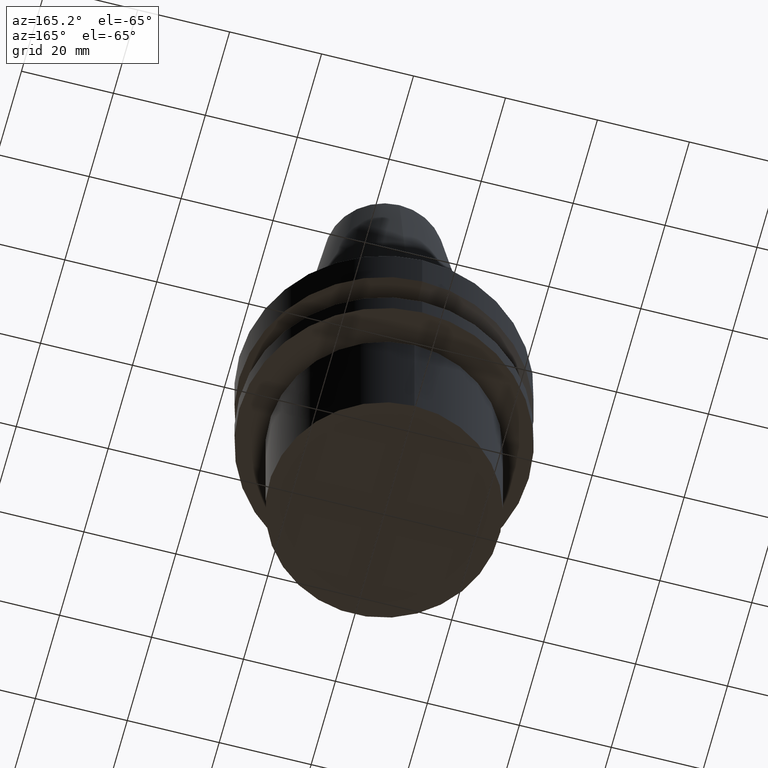
[diagram: clean part render]
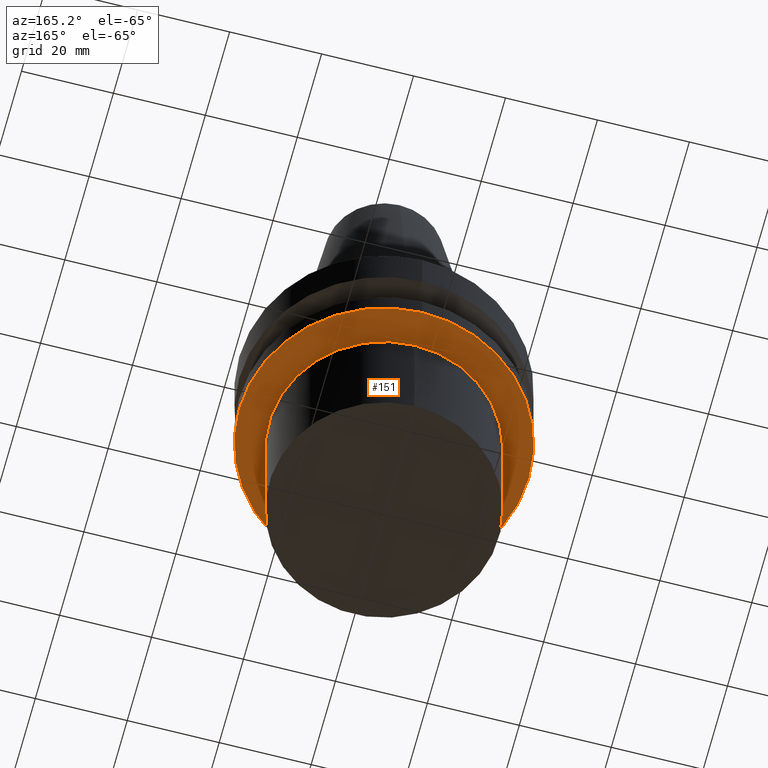
[diagram: same view with one face highlighted and labeled with its STEP entity id]
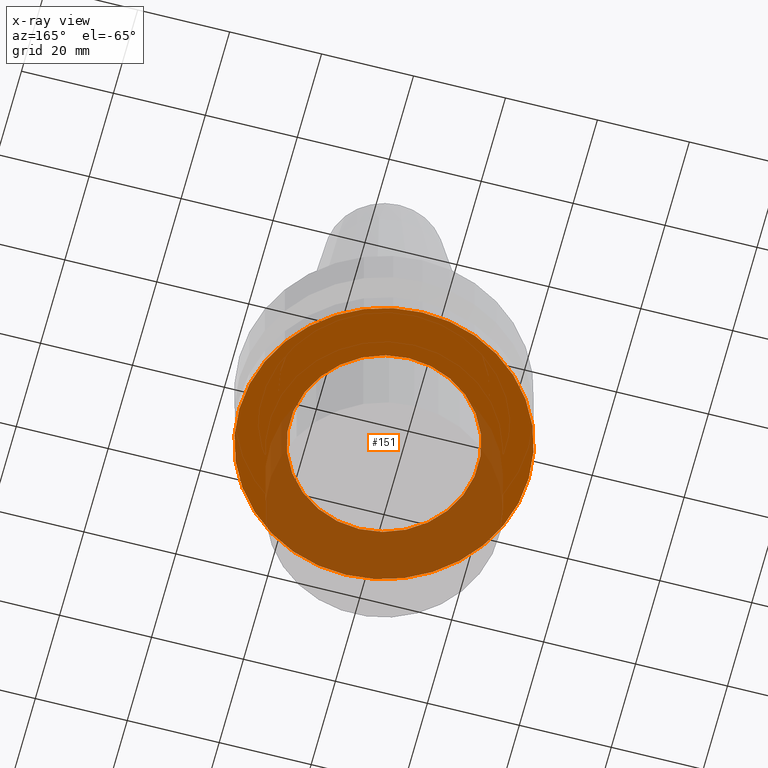
[diagram: x-ray of the same camera — body ghosted, the highlighted face saturated]
A machine part, auxiliary view. The second image highlights one B-rep face of the part: STEP entity #151.
The next image is the same camera in x-ray: the body ghosted, the highlighted face saturated — about 42% of this face is hidden behind the body in this view.
In plain terms, the highlighted planar face has unit normal (0, 0, -1).
Its self-contained STEP definition (entity closure, byte-faithful):
#69=EDGE_CURVE('Unnamed[1]',#180,#180,#181,.T.);
#97=EDGE_CURVE('Unnamed[1]',#224,#224,#225,.T.);
#151=ADVANCED_FACE('Unnamed[1]',(#304,#305),#306,.T.);
#180=VERTEX_POINT('',#332);
#181=CIRCLE('',#333,31.5000000000004);
#224=VERTEX_POINT('',#387);
#225=CIRCLE('',#388,20.4999999999911);
#304=FACE_BOUND('',#486,.T.);
#305=FACE_OUTER_BOUND('',#487,.T.);
#306=PLANE('',#488);
#332=CARTESIAN_POINT('',(1.65328282719222E-015,31.5000000000004,-27.0001575694036));
#333=AXIS2_PLACEMENT_3D('',#505,#506,#507);
#387=CARTESIAN_POINT('',(1.65328282719227E-015,20.4999999999911,-27.0001575694044));
#388=AXIS2_PLACEMENT_3D('',#555,#556,#557);
#486=EDGE_LOOP('',(#640));
#487=EDGE_LOOP('',(#641));
#488=AXIS2_PLACEMENT_3D('',#642,#643,#644);
#505=CARTESIAN_POINT('',(1.65328282719222E-015,6.5385755798775E-015,-27.0001575694036));
#506=DIRECTION('',(6.12323399573676E-017,-7.56206108338726E-016,-1.0));
#507=DIRECTION('',(4.14771167728632E-032,1.0,-7.56206108338726E-016));
#555=CARTESIAN_POINT('',(1.65328282719226E-015,6.53857557987689E-015,-27.0001575694044));
#556=DIRECTION('',(6.12323399573677E-017,-7.56206108338737E-016,-1.0));
#557=DIRECTION('',(4.14771167728657E-032,1.0,-7.56206108338737E-016));
#640=ORIENTED_EDGE('',*,*,#97,.F.);
#641=ORIENTED_EDGE('',*,*,#69,.T.);
#642=CARTESIAN_POINT('',(1.65328282719224E-015,25.9999999999957,-27.000157569404));
#643=DIRECTION('',(6.12323399573677E-017,7.27916081098634E-014,-1.0));
#644=DIRECTION('',(-4.46202764655741E-030,1.0,7.27916081098634E-014));